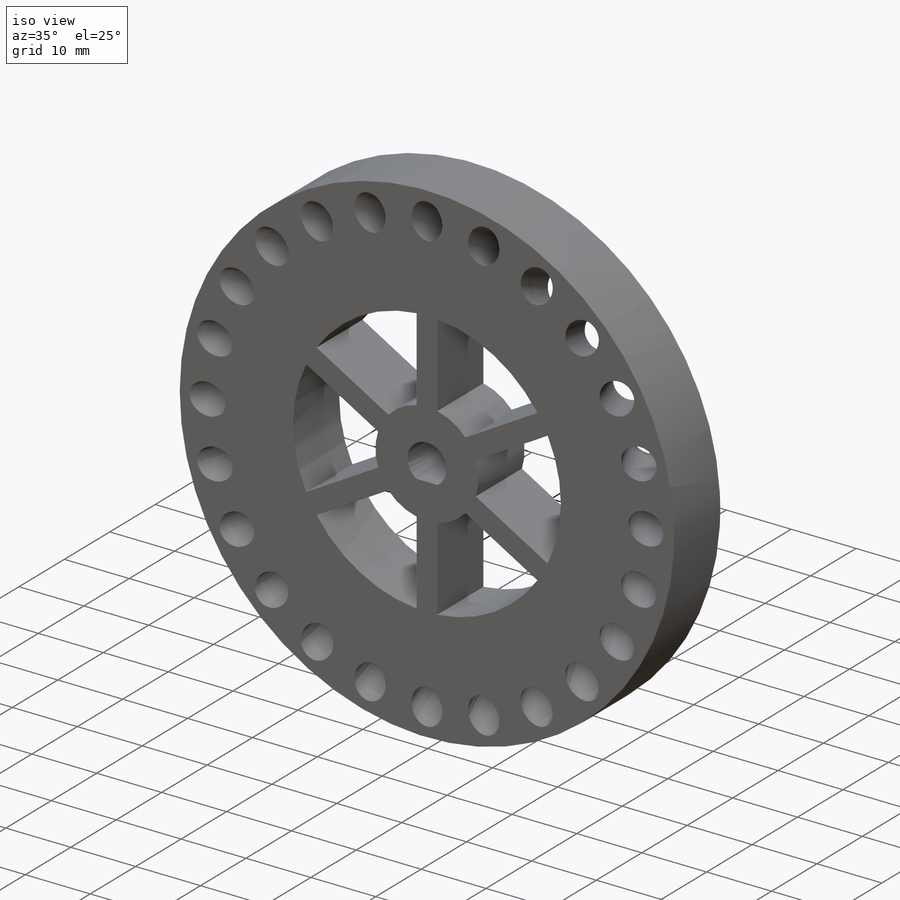
[diagram: iso view]
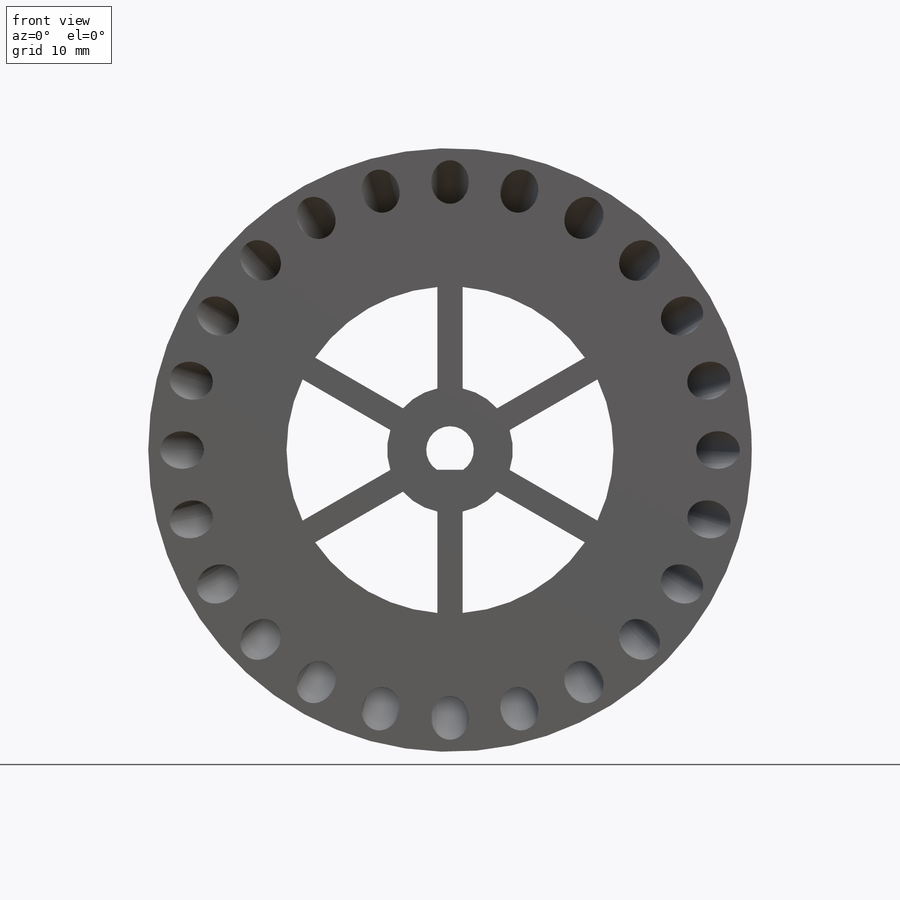
[diagram: front view]
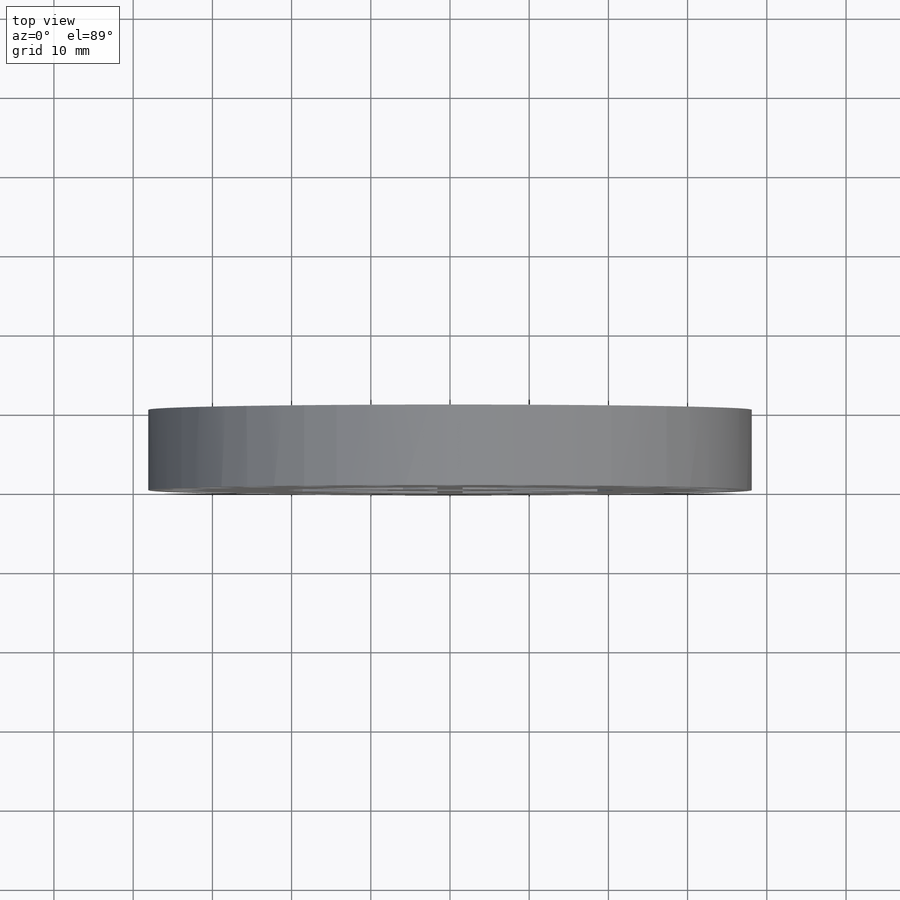
[diagram: top view]
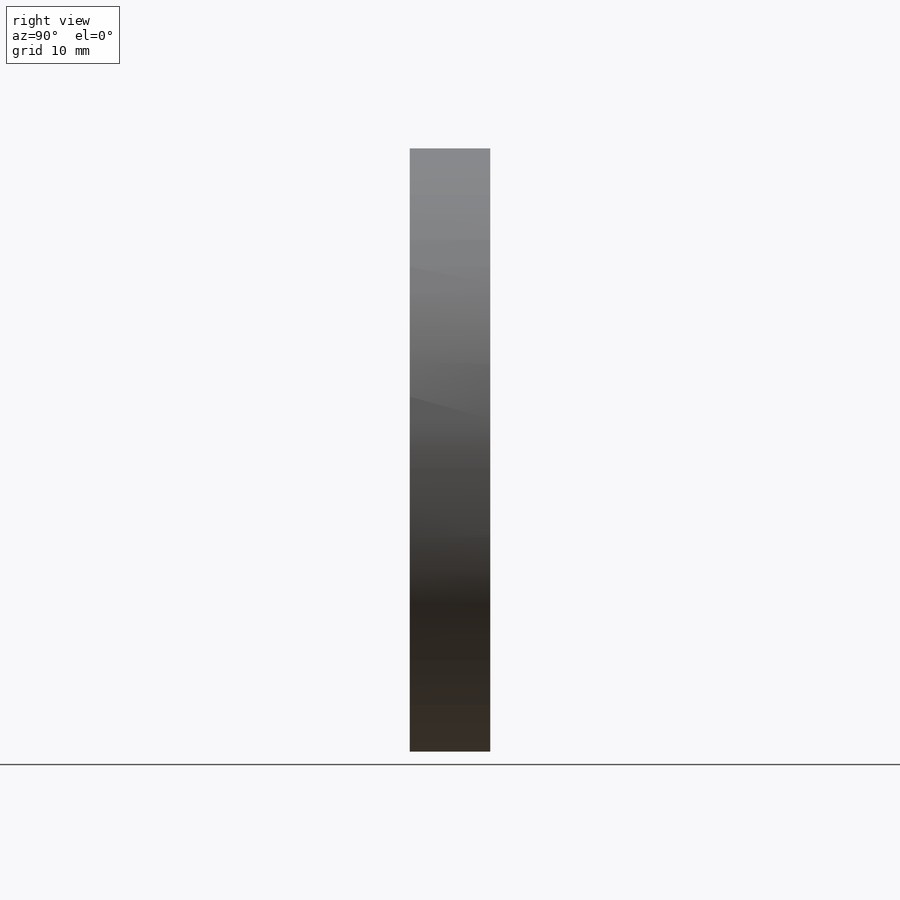
[diagram: right view]
SOLIDWORKS PART (.sldprt)
format: sldprt  version: not decoded by parser v0  size: 299,520 bytes
history: native  units: mm
features: sketch x4, cut_extrude x2, material x1, extrude x1, plane x1, pattern_circular x1 (+13 scaffold rows collapsed)
feature tree (23):
  scaffold x13  (default folders/planes/origin — collapsed)
  material  "Material <not specified>"
  sketch  "Sketch1"  dims[D1=6.0mm D2=76.2mm D3=2.5mm]
  extrude  "Boss-Extrude1"  Depth=10.16mm
  sketch  "Sketch3"  dims[c1.D1=10.16mm c1.D2=10.16mm c1.D3=10.16mm c2.D3=60.0deg c2.D4=22.098mm c2.D5=22.098mm]
  plane  "Plane1"
  sketch  "Sketch5"  dims[D1=4.7625mm]
  cut_extrude  "Cut-Extrude1"  Depth=6.35mm
  pattern_circular  "CirPattern1"  Count=24 Angle=15deg
  sketch  "Sketch6"  dims[D1=15.875mm D2=41.275mm D3=3.175mm D4=1.5875mm D5=6.0]
  cut_extrude  "Cut-Extrude7"  Depth=17.78mm
decode coverage: 8 of 8 modeling features carry decoded parameters
note: suppression state not decoded; provenance and decode notes live in map.json
